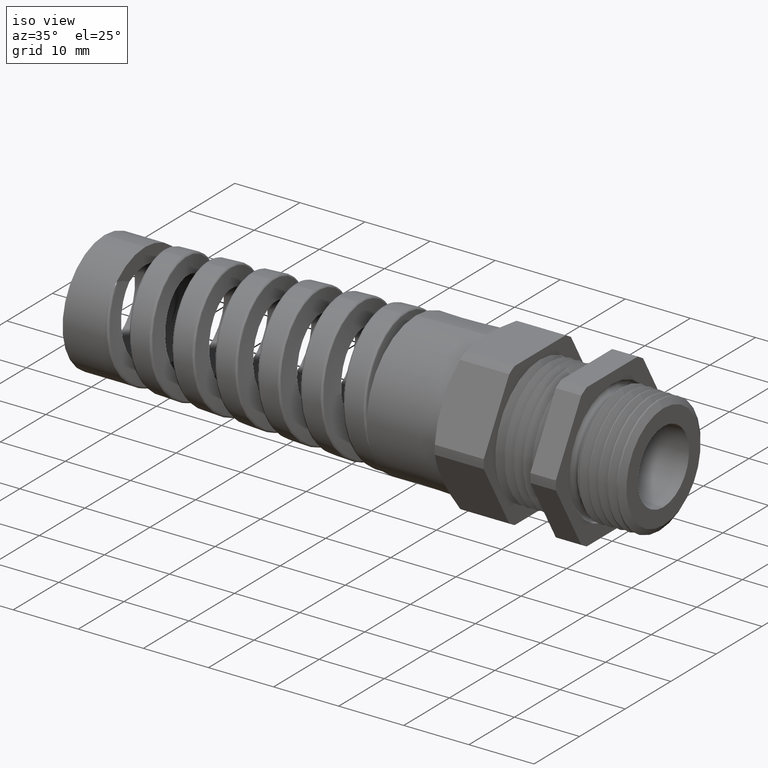
[diagram: clean part render]
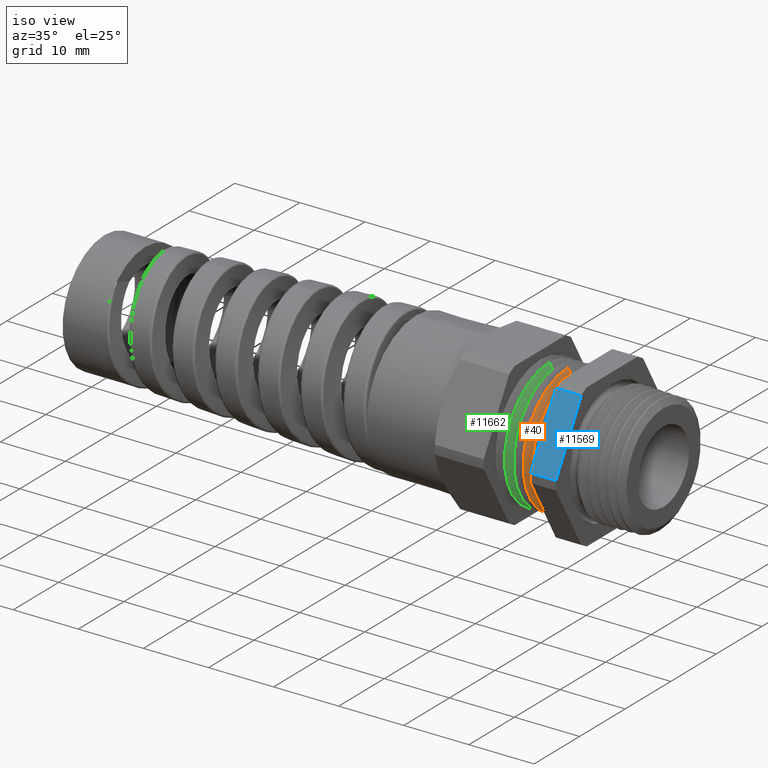
[diagram: same view with three faces highlighted in distinct colors, each labeled with its STEP entity id]
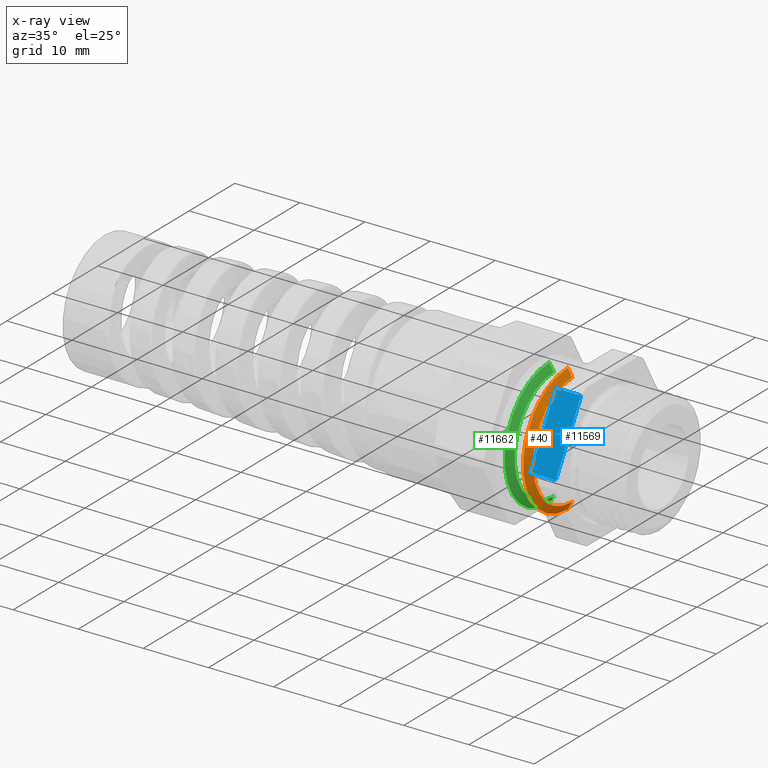
[diagram: x-ray of the same camera — body ghosted, the three highlighted faces saturated]
A machine part, iso view with three faces highlighted in distinct colors.
The next image is the same camera in x-ray (body ghosted, the three faces saturated) — at least one of them is partly hidden behind the body in this view.
Their STEP definitions:

[orange] entity #40 — the highlighted conical surface has half-angle 60 deg.
#40 = ADVANCED_FACE ( 'NONE', ( #1487 ), #1486, .T. ) ;
#1481 = DIRECTION ( 'NONE',  ( 0.0000000000000000000, 0.0000000000000000000, 1.000000000000000000 ) ) ;
#1482 = DIRECTION ( 'NONE',  ( -1.000000000000000000, 0.0000000000000000000, 0.0000000000000000000 ) ) ;
#1483 = CARTESIAN_POINT ( 'NONE',  ( -0.2678333333333332600, 0.0000000000000000000, 0.0000000000000000000 ) ) ;
#1484 = AXIS2_PLACEMENT_3D ( 'NONE', #1483, #1482, #1481 ) ;
#1486 = CONICAL_SURFACE ( 'NONE', #1484, 0.3869000000000000200, 1.047197551196604300 ) ;
#1487 = FACE_OUTER_BOUND ( 'NONE', #11678, .T. ) ;
#3185 = VERTEX_POINT ( 'NONE', #3405 ) ;
#3186 = VERTEX_POINT ( 'NONE', #3403 ) ;
#3188 = EDGE_CURVE ( 'NONE', #3185, #3190, #3398, .T. ) ;
#3190 = VERTEX_POINT ( 'NONE', #3391 ) ;
#3197 = VERTEX_POINT ( 'NONE', #3376 ) ;
#3199 = EDGE_CURVE ( 'NONE', #3186, #3197, #3518, .T. ) ;
#3376 = CARTESIAN_POINT ( 'NONE',  ( -0.2678333333333332600, 0.0000000000000000000, 0.3869000000000000200 ) ) ;
#3391 = CARTESIAN_POINT ( 'NONE',  ( -0.2678333333333332600, 4.738158465901109900E-017, -0.3869000000000000200 ) ) ;
#3394 = DIRECTION ( 'NONE',  ( -0.4999999999999943400, 1.060575238724910900E-016, -0.8660254037844418200 ) ) ;
#3395 = VECTOR ( 'NONE', #3394, 39.37007874015748100 ) ;
#3397 = CARTESIAN_POINT ( 'NONE',  ( -0.2678333333333332600, 4.738158465901109900E-017, -0.3869000000000000200 ) ) ;
#3398 = LINE ( 'NONE', #3397, #3395 ) ;
#3403 = CARTESIAN_POINT ( 'NONE',  ( -0.2403333461552116500, 4.446500411237423700E-017, 0.3392686249999999900 ) ) ;
#3405 = CARTESIAN_POINT ( 'NONE',  ( -0.2403333461552116500, 0.0000000000000000000, -0.3392686249999999900 ) ) ;
#3514 = DIRECTION ( 'NONE',  ( -0.4999999999999943400, 0.0000000000000000000, 0.8660254037844418200 ) ) ;
#3515 = VECTOR ( 'NONE', #3514, 39.37007874015748100 ) ;
#3517 = CARTESIAN_POINT ( 'NONE',  ( -0.2678333333333332600, 0.0000000000000000000, 0.3869000000000000200 ) ) ;
#3518 = LINE ( 'NONE', #3517, #3515 ) ;
#3664 = EDGE_CURVE ( 'NONE', #3197, #3190, #4628, .T. ) ;
#4512 = CARTESIAN_POINT ( 'NONE',  ( -0.2678333333333332600, 0.0000000000000000000, 0.0000000000000000000 ) ) ;
#4557 = DIRECTION ( 'NONE',  ( 0.0000000000000000000, 0.0000000000000000000, -1.000000000000000000 ) ) ;
#4560 = DIRECTION ( 'NONE',  ( 1.000000000000000000, 0.0000000000000000000, 0.0000000000000000000 ) ) ;
#4561 = AXIS2_PLACEMENT_3D ( 'NONE', #4574, #4560, #4557 ) ;
#4563 = CIRCLE ( 'NONE', #4561, 0.3392686249999999900 ) ;
#4574 = CARTESIAN_POINT ( 'NONE',  ( -0.2403333461552116500, 0.0000000000000000000, 0.0000000000000000000 ) ) ;
#4625 = DIRECTION ( 'NONE',  ( 0.0000000000000000000, 0.0000000000000000000, -1.000000000000000000 ) ) ;
#4626 = DIRECTION ( 'NONE',  ( 1.000000000000000000, 0.0000000000000000000, 0.0000000000000000000 ) ) ;
#4627 = AXIS2_PLACEMENT_3D ( 'NONE', #4512, #4626, #4625 ) ;
#4628 = CIRCLE ( 'NONE', #4627, 0.3869000000000000200 ) ;
#11672 = EDGE_CURVE ( 'NONE', #3186, #3185, #4563, .T. ) ;
#11678 = EDGE_LOOP ( 'NONE', ( #11682, #11687, #11722, #11734 ) ) ;
#11682 = ORIENTED_EDGE ( 'NONE', *, *, #3188, .F. ) ;
#11687 = ORIENTED_EDGE ( 'NONE', *, *, #11672, .F. ) ;
#11722 = ORIENTED_EDGE ( 'NONE', *, *, #3199, .T. ) ;
#11734 = ORIENTED_EDGE ( 'NONE', *, *, #3664, .T. ) ;

[blue] entity #11569 — the highlighted planar face has unit normal (0, -0.866, 0.5).
#2960 = EDGE_CURVE ( 'NONE', #3026, #3501, #3314, .T. ) ;
#3026 = VERTEX_POINT ( 'NONE', #3432 ) ;
#3310 = DIRECTION ( 'NONE',  ( 1.000000000000000000, 0.0000000000000000000, 0.0000000000000000000 ) ) ;
#3311 = VECTOR ( 'NONE', #3310, 39.37007874015748100 ) ;
#3313 = CARTESIAN_POINT ( 'NONE',  ( -2.154289792128107500, -0.4864238764986216800, 0.02748913188977850100 ) ) ;
#3314 = LINE ( 'NONE', #3313, #3311 ) ;
#3399 = VERTEX_POINT ( 'NONE', #4022 ) ;
#3432 = CARTESIAN_POINT ( 'NONE',  ( -0.1542288557213930500, -0.4864238764986216800, 0.02748913188977850100 ) ) ;
#3499 = EDGE_CURVE ( 'NONE', #3399, #3501, #4217, .T. ) ;
#3501 = VERTEX_POINT ( 'NONE', #4211 ) ;
#4022 = CARTESIAN_POINT ( 'NONE',  ( 0.0000000000000000000, -0.2670182247938398000, 0.4075108681102215200 ) ) ;
#4211 = CARTESIAN_POINT ( 'NONE',  ( 0.0000000000000000000, -0.4864238764986216800, 0.02748913188977850100 ) ) ;
#4212 = DIRECTION ( 'NONE',  ( 0.0000000000000000000, -0.5000000000000001100, -0.8660254037844386000 ) ) ;
#4214 = VECTOR ( 'NONE', #4212, 39.37007874015748900 ) ;
#4215 = CARTESIAN_POINT ( 'NONE',  ( 0.0000000000000000000, -0.2670182247938399100, 0.4075108681102214700 ) ) ;
#4217 = LINE ( 'NONE', #4215, #4214 ) ;
#4309 = DIRECTION ( 'NONE',  ( 0.0000000000000000000, -0.5000000000000001100, -0.8660254037844386000 ) ) ;
#4310 = DIRECTION ( 'NONE',  ( 0.0000000000000000000, -0.8660254037844386000, 0.5000000000000001100 ) ) ;
#4311 = CARTESIAN_POINT ( 'NONE',  ( -2.154289792128107500, -0.2670182247938399100, 0.4075108681102214700 ) ) ;
#4312 = AXIS2_PLACEMENT_3D ( 'NONE', #4311, #4310, #4309 ) ;
#4317 = PLANE ( 'NONE',  #4312 ) ;
#4318 = FACE_OUTER_BOUND ( 'NONE', #11458, .T. ) ;
#7872 = DIRECTION ( 'NONE',  ( 1.000000000000000000, 0.0000000000000000000, 0.0000000000000000000 ) ) ;
#7873 = VECTOR ( 'NONE', #7872, 39.37007874015748100 ) ;
#7874 = CARTESIAN_POINT ( 'NONE',  ( -2.154289792128107500, -0.2670182247938398000, 0.4075108681102215200 ) ) ;
#7875 = LINE ( 'NONE', #7874, #7873 ) ;
#7876 = CARTESIAN_POINT ( 'NONE',  ( -0.1542288557213930500, -0.2670182247938401900, 0.4075108681102214700 ) ) ;
#7911 = DIRECTION ( 'NONE',  ( 0.0000000000000000000, -0.5000000000000002200, -0.8660254037844386000 ) ) ;
#7912 = VECTOR ( 'NONE', #7911, 39.37007874015747400 ) ;
#7913 = CARTESIAN_POINT ( 'NONE',  ( -0.1542288557213930500, -0.2799960506462307300, 0.3850326143620998500 ) ) ;
#7914 = LINE ( 'NONE', #7913, #7912 ) ;
#11415 = VERTEX_POINT ( 'NONE', #7876 ) ;
#11416 = EDGE_CURVE ( 'NONE', #11415, #3399, #7875, .T. ) ;
#11437 = EDGE_CURVE ( 'NONE', #11415, #3026, #7914, .T. ) ;
#11452 = ORIENTED_EDGE ( 'NONE', *, *, #11416, .F. ) ;
#11453 = ORIENTED_EDGE ( 'NONE', *, *, #3499, .F. ) ;
#11454 = ORIENTED_EDGE ( 'NONE', *, *, #2960, .T. ) ;
#11457 = ORIENTED_EDGE ( 'NONE', *, *, #11437, .T. ) ;
#11458 = EDGE_LOOP ( 'NONE', ( #11457, #11454, #11453, #11452 ) ) ;
#11569 = ADVANCED_FACE ( 'NONE', ( #4318 ), #4317, .T. ) ;

[green] entity #11662 — the highlighted conical surface has half-angle 60 deg.
#3334 = VERTEX_POINT ( 'NONE', #3750 ) ;
#3338 = EDGE_CURVE ( 'NONE', #3372, #3334, #3746, .T. ) ;
#3370 = VERTEX_POINT ( 'NONE', #3938 ) ;
#3372 = VERTEX_POINT ( 'NONE', #3936 ) ;
#3375 = EDGE_CURVE ( 'NONE', #3370, #3377, #3931, .T. ) ;
#3377 = VERTEX_POINT ( 'NONE', #3924 ) ;
#3741 = DIRECTION ( 'NONE',  ( -0.4999999999999943400, 0.0000000000000000000, 0.8660254037844418200 ) ) ;
#3742 = VECTOR ( 'NONE', #3741, 39.37007874015748100 ) ;
#3744 = CARTESIAN_POINT ( 'NONE',  ( -0.3798333333333333000, 0.0000000000000000000, 0.3869000000000000200 ) ) ;
#3746 = LINE ( 'NONE', #3744, #3742 ) ;
#3750 = CARTESIAN_POINT ( 'NONE',  ( -0.3798333333333333000, 0.0000000000000000000, 0.3869000000000000200 ) ) ;
#3924 = CARTESIAN_POINT ( 'NONE',  ( -0.3798333333333333000, 4.738158465901109900E-017, -0.3869000000000000200 ) ) ;
#3926 = DIRECTION ( 'NONE',  ( -0.4999999999999943400, 1.060575238724910900E-016, -0.8660254037844418200 ) ) ;
#3928 = VECTOR ( 'NONE', #3926, 39.37007874015748100 ) ;
#3930 = CARTESIAN_POINT ( 'NONE',  ( -0.3798333333333333000, 4.738158465901109900E-017, -0.3869000000000000200 ) ) ;
#3931 = LINE ( 'NONE', #3930, #3928 ) ;
#3936 = CARTESIAN_POINT ( 'NONE',  ( -0.3523333461552116700, 4.446500411237423700E-017, 0.3392686249999999900 ) ) ;
#3938 = CARTESIAN_POINT ( 'NONE',  ( -0.3523333461552116700, 0.0000000000000000000, -0.3392686249999999900 ) ) ;
#4393 = DIRECTION ( 'NONE',  ( 0.0000000000000000000, 0.0000000000000000000, -1.000000000000000000 ) ) ;
#4395 = DIRECTION ( 'NONE',  ( 1.000000000000000000, 0.0000000000000000000, 0.0000000000000000000 ) ) ;
#4397 = CARTESIAN_POINT ( 'NONE',  ( -0.3523333461552116700, 0.0000000000000000000, 0.0000000000000000000 ) ) ;
#4399 = AXIS2_PLACEMENT_3D ( 'NONE', #4397, #4395, #4393 ) ;
#4408 = CIRCLE ( 'NONE', #4399, 0.3392686249999999900 ) ;
#4454 = DIRECTION ( 'NONE',  ( 0.0000000000000000000, 0.0000000000000000000, 1.000000000000000000 ) ) ;
#4457 = DIRECTION ( 'NONE',  ( -1.000000000000000000, 0.0000000000000000000, 0.0000000000000000000 ) ) ;
#4459 = AXIS2_PLACEMENT_3D ( 'NONE', #4474, #4457, #4454 ) ;
#4463 = CONICAL_SURFACE ( 'NONE', #4459, 0.3869000000000000200, 1.047197551196604300 ) ;
#4465 = FACE_OUTER_BOUND ( 'NONE', #11666, .T. ) ;
#4474 = CARTESIAN_POINT ( 'NONE',  ( -0.3798333333333333000, 0.0000000000000000000, 0.0000000000000000000 ) ) ;
#4525 = DIRECTION ( 'NONE',  ( 0.0000000000000000000, 0.0000000000000000000, -1.000000000000000000 ) ) ;
#4526 = DIRECTION ( 'NONE',  ( 1.000000000000000000, 0.0000000000000000000, 0.0000000000000000000 ) ) ;
#4527 = AXIS2_PLACEMENT_3D ( 'NONE', #4538, #4526, #4525 ) ;
#4529 = CIRCLE ( 'NONE', #4527, 0.3869000000000000200 ) ;
#4538 = CARTESIAN_POINT ( 'NONE',  ( -0.3798333333333333000, 0.0000000000000000000, 0.0000000000000000000 ) ) ;
#11635 = EDGE_CURVE ( 'NONE', #3372, #3370, #4408, .T. ) ;
#11649 = ORIENTED_EDGE ( 'NONE', *, *, #11745, .T. ) ;
#11651 = ORIENTED_EDGE ( 'NONE', *, *, #3338, .T. ) ;
#11662 = ADVANCED_FACE ( 'NONE', ( #4465 ), #4463, .T. ) ;
#11664 = ORIENTED_EDGE ( 'NONE', *, *, #3375, .F. ) ;
#11665 = ORIENTED_EDGE ( 'NONE', *, *, #11635, .F. ) ;
#11666 = EDGE_LOOP ( 'NONE', ( #11664, #11665, #11651, #11649 ) ) ;
#11745 = EDGE_CURVE ( 'NONE', #3334, #3377, #4529, .T. ) ;